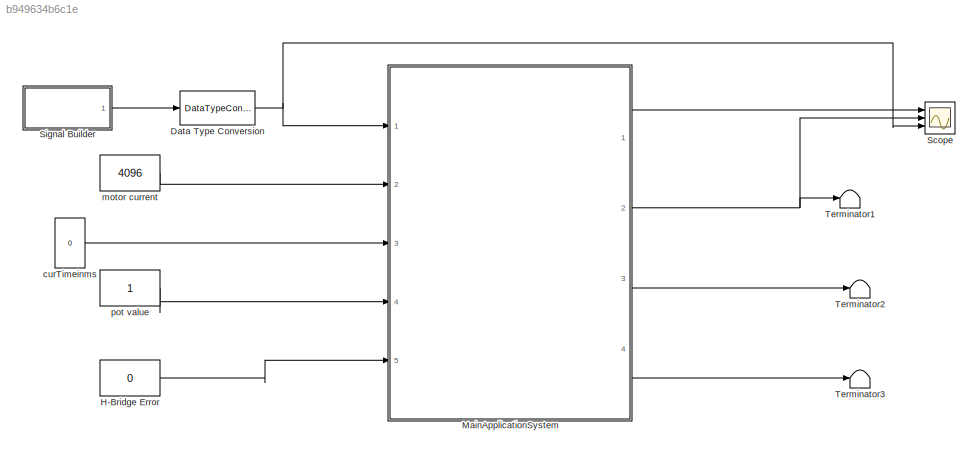
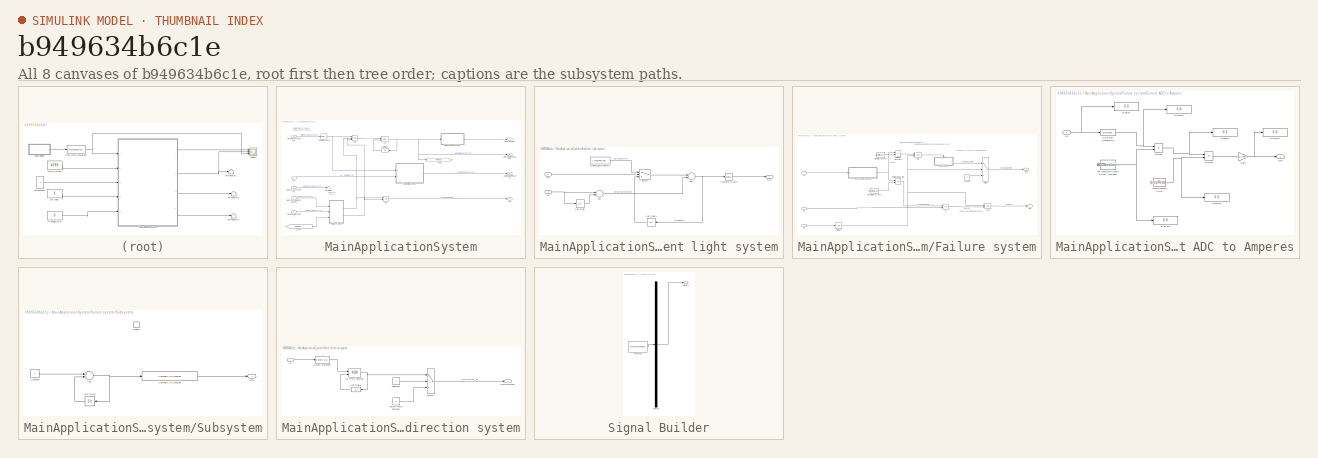
[diagram: thumbnail index - all 8 canvases of the model, root first then tree order]
MODEL slx_b949634b6c1e
KIND model
CONFIG AbsTol = auto
CONFIG EnableMultiTasking = on
CONFIG FixedStep = 0.01
CONFIG MaxStep = auto
CONFIG MinStep = auto
CONFIG RelTol = 1e-3
CONFIG SampleTimeConstraint = Unconstrained
CONFIG Solver = FixedStepDiscrete
CONFIG SolverName = FixedStepDiscrete
CONFIG StartTime = 0.0
CONFIG StopTime = 10
BLOCK [DataTypeConversion] Data Type Conversion
  RndMeth = Floor
  SaturateOnIntegerOverflow = off
BLOCK [Constant] H-Bridge Error
  OutDataTypeStr = Inherit: Inherit via back propagation
  Value = 0
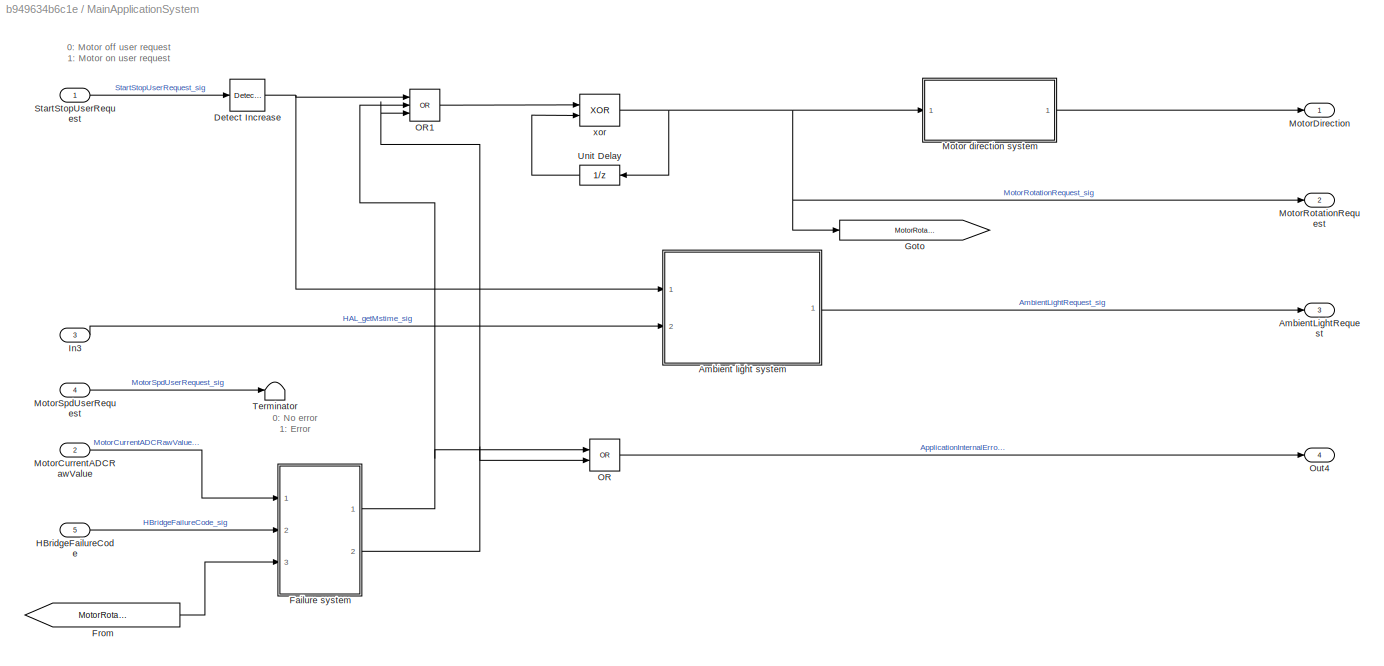
BLOCK [SubSystem] MainApplicationSystem
  Ports = [5, 4]
  RequestExecContextInheritance = off
BLOCK [SubSystem] MainApplicationSystem/Ambient light system
  Ports = [2, 1]
  RequestExecContextInheritance = off
BLOCK [Sum] MainApplicationSystem/Ambient light system/Add
  InputSameDT = off
  Inputs = +-
  OutDataTypeStr = Inherit: Inherit via internal rule
  Ports = [2, 1]
  SaturateOnIntegerOverflow = off
BLOCK [Sum] MainApplicationSystem/Ambient light system/Add1
  InputSameDT = off
  Inputs = +-
  OutDataTypeStr = Inherit: Inherit via internal rule
  Ports = [2, 1]
BLOCK [Constant] MainApplicationSystem/Ambient light system/AmbientLightOnTime_C
  OutDataTypeStr = uint32
  Value = AmbientLightOnTime_C
BLOCK [Reference] MainApplicationSystem/Ambient light system/Compare To Zero  REF=simulink/Logic and Bit
Operations/Compare
To Zero
  Ports = [1, 1]
  SourceBlock = simulink/Logic and Bit\nOperations/Compare\nTo Zero
  SourceProductBaseCode = SL
  SourceProductName = Simulink
  SourceType = Compare To Zero
BLOCK [Inport] MainApplicationSystem/Ambient light system/In1
  IconDisplay = Port number
BLOCK [Inport] MainApplicationSystem/Ambient light system/In2
  IconDisplay = Port number
  Port = 2
BLOCK [Outport] MainApplicationSystem/Ambient light system/Out1
  IconDisplay = Port number
BLOCK [Switch] MainApplicationSystem/Ambient light system/Switch
  Criteria = u2 > Threshold
  InputSameDT = off
  SaturateOnIntegerOverflow = off
BLOCK [UnitDelay] MainApplicationSystem/Ambient light system/Unit Delay
  HasFrameUpgradeWarning = on
  SampleTime = -1
BLOCK [UnitDelay] MainApplicationSystem/Ambient light system/Unit Delay1
  AttributesFormatString = %<InitialCondition>
  HasFrameUpgradeWarning = on
  SampleTime = -1
BLOCK [Outport] MainApplicationSystem/AmbientLightRequest
  IconDisplay = Port number
  Port = 3
BLOCK [Reference] MainApplicationSystem/Detect Increase  REF=simulink/Logic and Bit
Operations/Detect
Increase
  Ports = [1, 1]
  SourceBlock = simulink/Logic and Bit\nOperations/Detect\nIncrease
  SourceProductBaseCode = SL
  SourceProductName = Simulink
  SourceType = Detect Increase
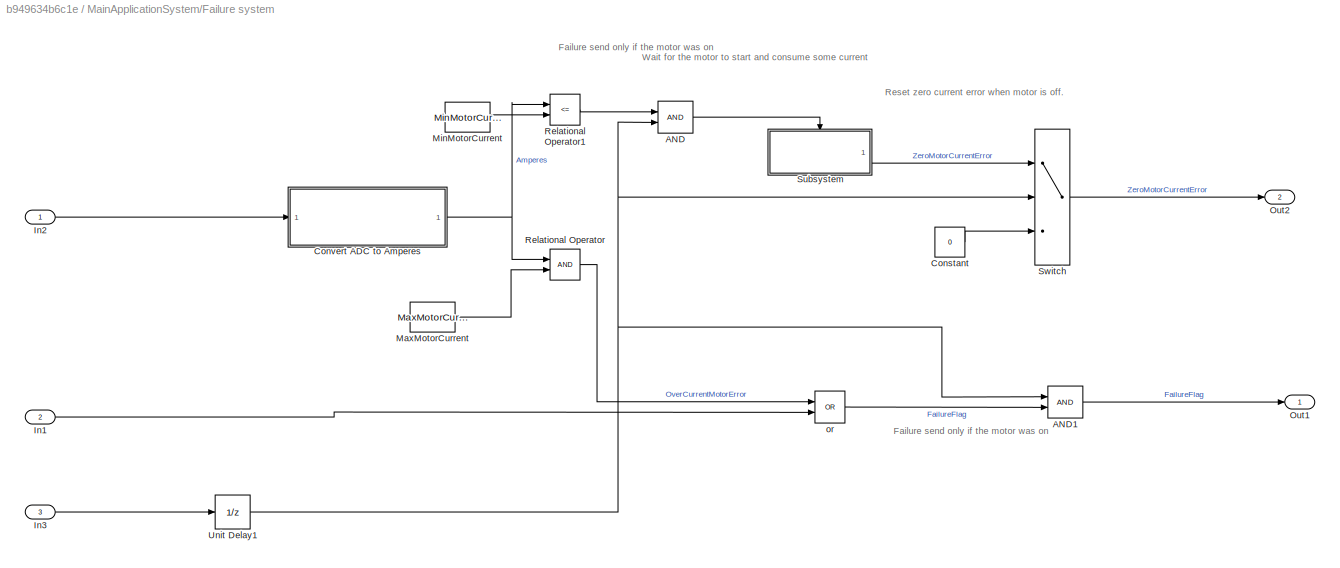
BLOCK [SubSystem] MainApplicationSystem/Failure system
  Ports = [3, 2]
  RequestExecContextInheritance = off
BLOCK [Logic] MainApplicationSystem/Failure system/AND
  AllPortsSameDT = off
  IconShape = distinctive
  OutDataTypeStr = boolean
  Ports = [2, 1]
BLOCK [Logic] MainApplicationSystem/Failure system/AND1
  AllPortsSameDT = off
  IconShape = distinctive
  OutDataTypeStr = boolean
  Ports = [2, 1]
BLOCK [Constant] MainApplicationSystem/Failure system/Constant
  OutDataTypeStr = boolean
  Value = 0
BLOCK [SubSystem] MainApplicationSystem/Failure system/Convert ADC to Amperes
  Ports = [1, 1]
  RequestExecContextInheritance = off
BLOCK [DataTypeConversion] MainApplicationSystem/Failure system/Convert ADC to Amperes/Data Type Conversion
  OutDataTypeStr = single
  RndMeth = Floor
  SaturateOnIntegerOverflow = off
BLOCK [Display] MainApplicationSystem/Failure system/Convert ADC to Amperes/Display
  Decimation = 1
  Ports = [1]
BLOCK [Display] MainApplicationSystem/Failure system/Convert ADC to Amperes/Display1
  Decimation = 1
  Ports = [1]
BLOCK [Display] MainApplicationSystem/Failure system/Convert ADC to Amperes/Display2
  Decimation = 1
  Ports = [1]
BLOCK [Display] MainApplicationSystem/Failure system/Convert ADC to Amperes/Display3
  Decimation = 1
  Ports = [1]
BLOCK [Display] MainApplicationSystem/Failure system/Convert ADC to Amperes/Display4
  Decimation = 1
  Ports = [1]
BLOCK [Display] MainApplicationSystem/Failure system/Convert ADC to Amperes/Display5
  Decimation = 1
  Ports = [1]
BLOCK [Product] MainApplicationSystem/Failure system/Convert ADC to Amperes/Divide
  InputSameDT = off
  Inputs = **
  OutDataTypeStr = Inherit: Inherit via internal rule
  Ports = [2, 1]
  RndMeth = Floor
  SaturateOnIntegerOverflow = off
BLOCK [Product] MainApplicationSystem/Failure system/Convert ADC to Amperes/Divide1
  InputSameDT = off
  Inputs = */
  OutDataTypeStr = Inherit: Inherit via internal rule
  Ports = [2, 1]
  RndMeth = Floor
  SaturateOnIntegerOverflow = off
BLOCK [Gain] MainApplicationSystem/Failure system/Convert ADC to Amperes/Gain
  Gain = IPROPFactor_C
  OutDataTypeStr = Inherit: Inherit via internal rule
  ParamDataTypeStr = Inherit: Inherit via internal rule
  SaturateOnIntegerOverflow = off
BLOCK [Inport] MainApplicationSystem/Failure system/Convert ADC to Amperes/In1
  IconDisplay = Port number
BLOCK [Constant] MainApplicationSystem/Failure system/Convert ADC to Amperes/Iprop Resistor Value
  Value = IpropResistorValue_C
BLOCK [Outport] MainApplicationSystem/Failure system/Convert ADC to Amperes/Out1
  IconDisplay = Port number
BLOCK [Constant] MainApplicationSystem/Failure system/Convert ADC to Amperes/adc resolution (12bit) 3.3 volt reference
  OutDataTypeStr = single
  Value = ADCResolutionmVproBit_C
BLOCK [Inport] MainApplicationSystem/Failure system/In1
  IconDisplay = Port number
  Port = 2
BLOCK [Inport] MainApplicationSystem/Failure system/In2
  IconDisplay = Port number
BLOCK [Inport] MainApplicationSystem/Failure system/In3
  IconDisplay = Port number
  Port = 3
BLOCK [Constant] MainApplicationSystem/Failure system/MaxMotorCurrent
  Value = MaxMotorCurrent_C
BLOCK [Constant] MainApplicationSystem/Failure system/MinMotorCurrent
  Value = MinMotorCurrent_C
BLOCK [Outport] MainApplicationSystem/Failure system/Out1
  IconDisplay = Port number
BLOCK [Outport] MainApplicationSystem/Failure system/Out2
  IconDisplay = Port number
  Port = 2
BLOCK [RelationalOperator] MainApplicationSystem/Failure system/Relational Operator
  OutDataTypeStr = boolean
  Ports = [2, 1]
  RndMeth = Floor
BLOCK [RelationalOperator] MainApplicationSystem/Failure system/Relational Operator1
  Operator = <=
  OutDataTypeStr = boolean
  Ports = [2, 1]
  RndMeth = Floor
BLOCK [SubSystem] MainApplicationSystem/Failure system/Subsystem
  Ports = [0, 1, 1]
  RequestExecContextInheritance = off
BLOCK [Sum] MainApplicationSystem/Failure system/Subsystem/Add
  InputSameDT = off
  OutDataTypeStr = Inherit: Inherit via internal rule
  Ports = [2, 1]
BLOCK [Reference] MainApplicationSystem/Failure system/Subsystem/Compare To Constant  REF=simulink/Logic and Bit
Operations/Compare
To Constant
  Ports = [1, 1]
  SourceBlock = simulink/Logic and Bit\nOperations/Compare\nTo Constant
  SourceProductBaseCode = SL
  SourceProductName = Simulink
  SourceType = Compare To Constant
BLOCK [Constant] MainApplicationSystem/Failure system/Subsystem/Constant
  OutDataTypeStr = uint8
BLOCK [EnablePort] MainApplicationSystem/Failure system/Subsystem/Enable
  Ports = []
  StatesWhenEnabling = reset
BLOCK [Outport] MainApplicationSystem/Failure system/Subsystem/Out1
  IconDisplay = Port number
BLOCK [UnitDelay] MainApplicationSystem/Failure system/Subsystem/Unit Delay
  AttributesFormatString = %<InitialCondition>
  HasFrameUpgradeWarning = on
  SampleTime = -1
BLOCK [Switch] MainApplicationSystem/Failure system/Switch
  AttributesFormatString = Threshold = %<Threshold>\n%<Criteria>
  Criteria = u2 > Threshold
  InputSameDT = off
  SaturateOnIntegerOverflow = off
BLOCK [UnitDelay] MainApplicationSystem/Failure system/Unit Delay1
  HasFrameUpgradeWarning = on
  SampleTime = -1
BLOCK [Logic] MainApplicationSystem/Failure system/or
  AllPortsSameDT = off
  IconShape = distinctive
  Operator = OR
  OutDataTypeStr = boolean
  Ports = [2, 1]
BLOCK [From] MainApplicationSystem/From
  GotoTag = MotorRotationRequest_sig
BLOCK [Goto] MainApplicationSystem/Goto
  GotoTag = MotorRotationRequest_sig
BLOCK [Inport] MainApplicationSystem/HBridgeFailureCode
  IconDisplay = Port number
  Port = 5
BLOCK [Inport] MainApplicationSystem/In3
  IconDisplay = Port number
  Port = 3
BLOCK [SubSystem] MainApplicationSystem/Motor direction system
  Ports = [1, 1]
  RequestExecContextInheritance = off
BLOCK [Reference] MainApplicationSystem/Motor direction system/Detect Decrease  REF=simulink/Logic and Bit
Operations/Detect
Decrease
  Ports = [1, 1]
  SourceBlock = simulink/Logic and Bit\nOperations/Detect\nDecrease
  SourceProductBaseCode = SL
  SourceProductName = Simulink
  SourceType = Detect Decrease
BLOCK [Constant] MainApplicationSystem/Motor direction system/Extern motor direction
  OutDataTypeStr = boolean
  Value = 0
BLOCK [Inport] MainApplicationSystem/Motor direction system/In1
  IconDisplay = Port number
BLOCK [Outport] MainApplicationSystem/Motor direction system/MotorDirection
  IconDisplay = Port number
BLOCK [Switch] MainApplicationSystem/Motor direction system/Switch
  Criteria = u2 > Threshold
  InputSameDT = off
  SaturateOnIntegerOverflow = off
BLOCK [UnitDelay] MainApplicationSystem/Motor direction system/Unit Delay1
  HasFrameUpgradeWarning = on
  SampleTime = -1
BLOCK [Constant] MainApplicationSystem/Motor direction system/calibration 
  OutDataTypeStr = boolean
BLOCK [Logic] MainApplicationSystem/Motor direction system/xor motor direction
  AllPortsSameDT = off
  IconShape = distinctive
  Operator = XOR
  OutDataTypeStr = boolean
  Ports = [2, 1]
BLOCK [Inport] MainApplicationSystem/MotorCurrentADCRawValue
  IconDisplay = Port number
  Port = 2
BLOCK [Outport] MainApplicationSystem/MotorDirection
  IconDisplay = Port number
BLOCK [Outport] MainApplicationSystem/MotorRotationRequest
  IconDisplay = Port number
  Port = 2
BLOCK [Inport] MainApplicationSystem/MotorSpdUserRequest
  IconDisplay = Port number
  Port = 4
BLOCK [Logic] MainApplicationSystem/OR
  AllPortsSameDT = off
  IconShape = distinctive
  Operator = OR
  OutDataTypeStr = boolean
  Ports = [2, 1]
BLOCK [Logic] MainApplicationSystem/OR1
  AllPortsSameDT = off
  IconShape = distinctive
  Inputs = 3
  Operator = OR
  OutDataTypeStr = boolean
  Ports = [3, 1]
BLOCK [Outport] MainApplicationSystem/Out4
  IconDisplay = Port number
  Port = 4
BLOCK [Inport] MainApplicationSystem/StartStopUserRequest
  IconDisplay = Port number
BLOCK [Terminator] MainApplicationSystem/Terminator
BLOCK [UnitDelay] MainApplicationSystem/Unit Delay
  HasFrameUpgradeWarning = on
  SampleTime = -1
BLOCK [Logic] MainApplicationSystem/xor 
  AllPortsSameDT = off
  IconShape = distinctive
  Operator = XOR
  OutDataTypeStr = boolean
  Ports = [2, 1]
BLOCK [Scope] Scope
  Floating = off
  NumInputPorts = 3
  Ports = [3]
  ScopeSpecificationString = Simulink.scopes.TimeScopeBlockCfg('CurrentConfiguration', extmgr.ConfigurationSet(extmgr.Configuration('Core','General UI',true),extmgr.Configuration('Core','Source UI',true),extmgr.Configuration('Sources','WiredSimulink',true),extmgr.Configuration('Visuals','Time Domain',true,'SerializedDisplays',{struct('MinYLimReal','-0.125','MaxYLimReal','1.125','YLabelReal','','MinYLimMag','0.00000','MaxYLimM...<+1540ch>
BLOCK [SubSystem] Signal Builder
  ClipboardFcn = sigbuilder_block('clipboard');
  CloseFcn = sigbuilder_block('close');
  ContinueFcn = sigbuilder_block('continue');
  CopyFcn = sigbuilder_block('copy');
  DeleteFcn = sigbuilder_block('delete');
  LoadFcn = sigbuilder_block('load');
  MaskHideContents = on
  ModelCloseFcn = sigbuilder_block('modelClose');
  NameChangeFcn = sigbuilder_block('namechange');
  OpenFcn = sigbuilder_block('open',[429.75 192 565.5 389.25 ]);
  PauseFcn = sigbuilder_block('pause');
  Ports = [0, 1]
  PreSaveFcn = sigbuilder_block('preSave');
  RequestExecContextInheritance = off
  StartFcn = sigbuilder_block('start');
  StopFcn = sigbuilder_block('stop');
  Tag = STV Subsys
BLOCK [Demux] Signal Builder/Demux
  Outputs = 1
  Ports = [1, 1]
  Tag = STV Demux
BLOCK [FromWorkspace] Signal Builder/FromWs
  SampleTime = 0
  Tag = STV FromWs
  VariableName = tuvar
  ZeroCross = on
BLOCK [Outport] Signal Builder/Signal 1
  IconDisplay = Port number
  Tag = STV Outport
BLOCK [Terminator] Terminator1
BLOCK [Terminator] Terminator2
BLOCK [Terminator] Terminator3
BLOCK [Constant] curTimeinms
  OutDataTypeStr = uint32
  Value = 0
BLOCK [Constant] motor current
  OutDataTypeStr = Inherit: Inherit via back propagation
  Value = 4096
BLOCK [Constant] pot value
  OutDataTypeStr = Inherit: Inherit via back propagation
ANNOTATION MainApplicationSystem: 0: Motor off user request 1: Motor on user request
ANNOTATION MainApplicationSystem: 0: No error 1: Error
ANNOTATION MainApplicationSystem/Failure system: Failure send only if the motor was on
ANNOTATION MainApplicationSystem/Failure system: Reset zero current error when motor is off.
ANNOTATION MainApplicationSystem/Failure system: Wait for the motor to start and consume some current
NET Data Type Conversion:1 -> MainApplicationSystem:1, Scope:3
LINE H-Bridge Error:1 -> MainApplicationSystem:5
NET MainApplicationSystem/Ambient light system/Add1:1 -> MainApplicationSystem/Ambient light system/Compare To Zero:1, MainApplicationSystem/Ambient light system/Unit Delay1:1
LINE MainApplicationSystem/Ambient light system/Add:1 -> MainApplicationSystem/Ambient light system/Add1:2
LINE MainApplicationSystem/Ambient light system/AmbientLightOnTime_C:1 -> MainApplicationSystem/Ambient light system/Switch:1
LINE MainApplicationSystem/Ambient light system/Compare To Zero:1 -> MainApplicationSystem/Ambient light system/Out1:1
LINE MainApplicationSystem/Ambient light system/In1:1 -> MainApplicationSystem/Ambient light system/Switch:2
NET MainApplicationSystem/Ambient light system/In2:1 -> MainApplicationSystem/Ambient light system/Add:1, MainApplicationSystem/Ambient light system/Unit Delay:1
LINE MainApplicationSystem/Ambient light system/Switch:1 -> MainApplicationSystem/Ambient light system/Add1:1
LINE MainApplicationSystem/Ambient light system/Unit Delay1:1 -> MainApplicationSystem/Ambient light system/Switch:3
LINE MainApplicationSystem/Ambient light system/Unit Delay:1 -> MainApplicationSystem/Ambient light system/Add:2
LINE MainApplicationSystem/Ambient light system:1 -> MainApplicationSystem/AmbientLightRequest:1
NET MainApplicationSystem/Detect Increase:1 -> MainApplicationSystem/Ambient light system:1, MainApplicationSystem/OR1:1
LINE MainApplicationSystem/Failure system/AND1:1 -> MainApplicationSystem/Failure system/Out1:1
LINE MainApplicationSystem/Failure system/AND:1 -> MainApplicationSystem/Failure system/Subsystem:enable
LINE MainApplicationSystem/Failure system/Constant:1 -> MainApplicationSystem/Failure system/Switch:3
NET MainApplicationSystem/Failure system/Convert ADC to Amperes/Data Type Conversion:1 -> MainApplicationSystem/Failure system/Convert ADC to Amperes/Display1:1, MainApplicationSystem/Failure system/Convert ADC to Amperes/Divide:1
LINE MainApplicationSystem/Failure system/Convert ADC to Amperes/Divide1:1 -> MainApplicationSystem/Failure system/Convert ADC to Amperes/Gain:1
NET MainApplicationSystem/Failure system/Convert ADC to Amperes/Divide:1 -> MainApplicationSystem/Failure system/Convert ADC to Amperes/Display4:1, MainApplicationSystem/Failure system/Convert ADC to Amperes/Divide1:1
NET MainApplicationSystem/Failure system/Convert ADC to Amperes/Gain:1 -> MainApplicationSystem/Failure system/Convert ADC to Amperes/Display5:1, MainApplicationSystem/Failure system/Convert ADC to Amperes/Out1:1
NET MainApplicationSystem/Failure system/Convert ADC to Amperes/In1:1 -> MainApplicationSystem/Failure system/Convert ADC to Amperes/Data Type Conversion:1, MainApplicationSystem/Failure system/Convert ADC to Amperes/Display:1
NET MainApplicationSystem/Failure system/Convert ADC to Amperes/Iprop Resistor Value:1 -> MainApplicationSystem/Failure system/Convert ADC to Amperes/Display3:1, MainApplicationSystem/Failure system/Convert ADC to Amperes/Divide1:2
NET MainApplicationSystem/Failure system/Convert ADC to Amperes/adc resolution (12bit) 3.3 volt reference:1 -> MainApplicationSystem/Failure system/Convert ADC to Amperes/Display2:1, MainApplicationSystem/Failure system/Convert ADC to Amperes/Divide:2
NET MainApplicationSystem/Failure system/Convert ADC to Amperes:1 -> MainApplicationSystem/Failure system/Relational Operator1:1, MainApplicationSystem/Failure system/Relational Operator:1
LINE MainApplicationSystem/Failure system/In1:1 -> MainApplicationSystem/Failure system/or:2
LINE MainApplicationSystem/Failure system/In2:1 -> MainApplicationSystem/Failure system/Convert ADC to Amperes:1
LINE MainApplicationSystem/Failure system/In3:1 -> MainApplicationSystem/Failure system/Unit Delay1:1
LINE MainApplicationSystem/Failure system/MaxMotorCurrent:1 -> MainApplicationSystem/Failure system/Relational Operator:2
LINE MainApplicationSystem/Failure system/MinMotorCurrent:1 -> MainApplicationSystem/Failure system/Relational Operator1:2
LINE MainApplicationSystem/Failure system/Relational Operator1:1 -> MainApplicationSystem/Failure system/AND:1
LINE MainApplicationSystem/Failure system/Relational Operator:1 -> MainApplicationSystem/Failure system/or:1
NET MainApplicationSystem/Failure system/Subsystem/Add:1 -> MainApplicationSystem/Failure system/Subsystem/Compare To Constant:1, MainApplicationSystem/Failure system/Subsystem/Unit Delay:1
LINE MainApplicationSystem/Failure system/Subsystem/Compare To Constant:1 -> MainApplicationSystem/Failure system/Subsystem/Out1:1
LINE MainApplicationSystem/Failure system/Subsystem/Constant:1 -> MainApplicationSystem/Failure system/Subsystem/Add:1
LINE MainApplicationSystem/Failure system/Subsystem/Unit Delay:1 -> MainApplicationSystem/Failure system/Subsystem/Add:2
LINE MainApplicationSystem/Failure system/Subsystem:1 -> MainApplicationSystem/Failure system/Switch:1
LINE MainApplicationSystem/Failure system/Switch:1 -> MainApplicationSystem/Failure system/Out2:1
NET MainApplicationSystem/Failure system/Unit Delay1:1 -> MainApplicationSystem/Failure system/AND1:1, MainApplicationSystem/Failure system/AND:2, MainApplicationSystem/Failure system/Switch:2
LINE MainApplicationSystem/Failure system/or:1 -> MainApplicationSystem/Failure system/AND1:2
NET MainApplicationSystem/Failure system:1 -> MainApplicationSystem/OR1:2, MainApplicationSystem/OR:1
NET MainApplicationSystem/Failure system:2 -> MainApplicationSystem/OR1:3, MainApplicationSystem/OR:2
LINE MainApplicationSystem/From:1 -> MainApplicationSystem/Failure system:3
LINE MainApplicationSystem/HBridgeFailureCode:1 -> MainApplicationSystem/Failure system:2
LINE MainApplicationSystem/In3:1 -> MainApplicationSystem/Ambient light system:2
LINE MainApplicationSystem/Motor direction system/Detect Decrease:1 -> MainApplicationSystem/Motor direction system/xor motor direction:1
LINE MainApplicationSystem/Motor direction system/Extern motor direction:1 -> MainApplicationSystem/Motor direction system/Switch:3
LINE MainApplicationSystem/Motor direction system/In1:1 -> MainApplicationSystem/Motor direction system/Detect Decrease:1
LINE MainApplicationSystem/Motor direction system/Switch:1 -> MainApplicationSystem/Motor direction system/MotorDirection:1
LINE MainApplicationSystem/Motor direction system/Unit Delay1:1 -> MainApplicationSystem/Motor direction system/xor motor direction:2
LINE MainApplicationSystem/Motor direction system/calibration :1 -> MainApplicationSystem/Motor direction system/Switch:2
NET MainApplicationSystem/Motor direction system/xor motor direction:1 -> MainApplicationSystem/Motor direction system/Switch:1, MainApplicationSystem/Motor direction system/Unit Delay1:1
LINE MainApplicationSystem/Motor direction system:1 -> MainApplicationSystem/MotorDirection:1
LINE MainApplicationSystem/MotorCurrentADCRawValue:1 -> MainApplicationSystem/Failure system:1
LINE MainApplicationSystem/MotorSpdUserRequest:1 -> MainApplicationSystem/Terminator:1
LINE MainApplicationSystem/OR1:1 -> MainApplicationSystem/xor :1
LINE MainApplicationSystem/OR:1 -> MainApplicationSystem/Out4:1
LINE MainApplicationSystem/StartStopUserRequest:1 -> MainApplicationSystem/Detect Increase:1
LINE MainApplicationSystem/Unit Delay:1 -> MainApplicationSystem/xor :2
NET MainApplicationSystem/xor :1 -> MainApplicationSystem/Goto:1, MainApplicationSystem/Motor direction system:1, MainApplicationSystem/MotorRotationRequest:1, MainApplicationSystem/Unit Delay:1
LINE MainApplicationSystem:1 -> Scope:1
NET MainApplicationSystem:2 -> Scope:2, Terminator1:1
LINE MainApplicationSystem:3 -> Terminator2:1
LINE MainApplicationSystem:4 -> Terminator3:1
LINE Signal Builder:1 -> Data Type Conversion:1
LINE curTimeinms:1 -> MainApplicationSystem:3
LINE motor current:1 -> MainApplicationSystem:2
LINE pot value:1 -> MainApplicationSystem:4
note: NET lines group one-source signal fan-out (src -> all destinations, sorted); 1:1 wires keep LINE
